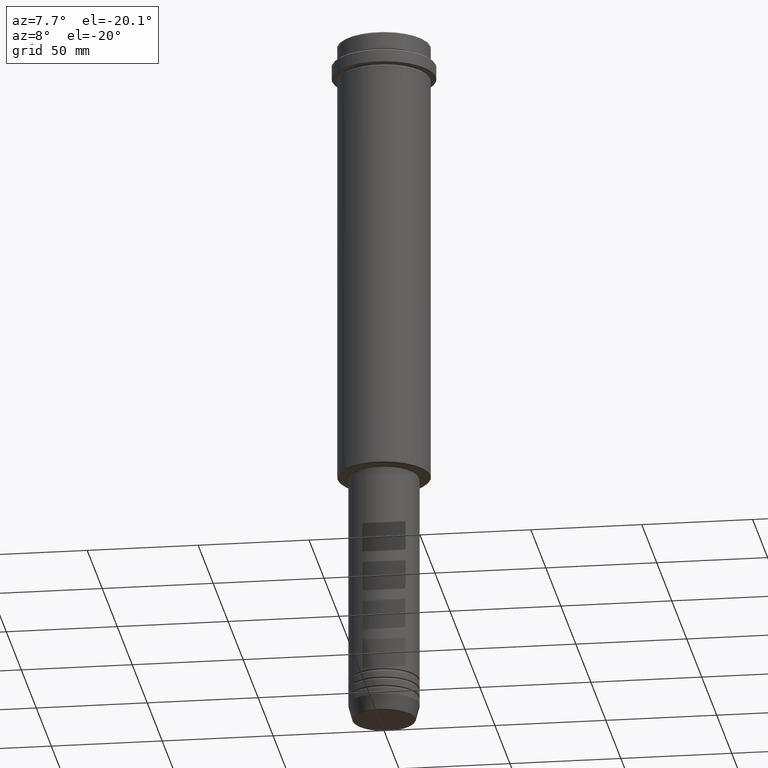
[diagram: clean part render]
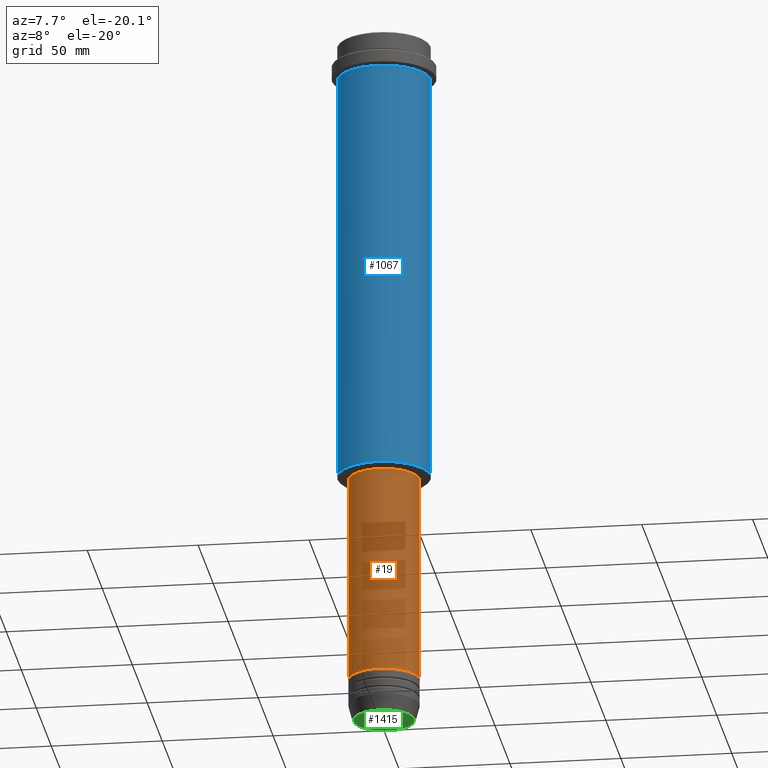
[diagram: same view with three faces highlighted in distinct colors, each labeled with its STEP entity id]
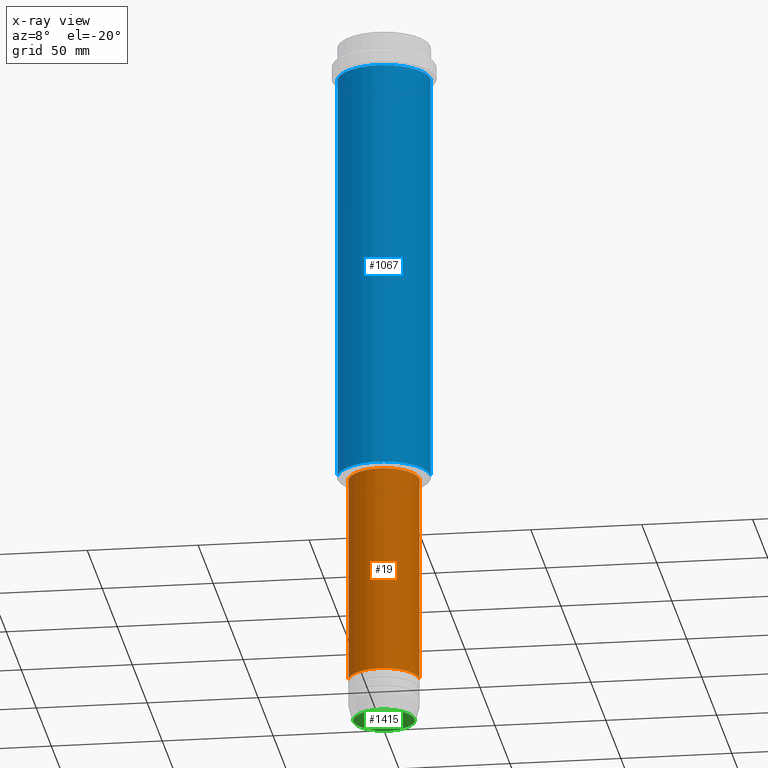
[diagram: x-ray of the same camera — body ghosted, the three highlighted faces saturated]
A machine part, auxiliary view with three faces highlighted in distinct colors.
The next image is the same camera in x-ray (body ghosted, the three faces saturated) — at least one of them is partly hidden behind the body in this view.
Their STEP definitions:

[orange] entity #19 — the highlighted cylindrical surface (edge-blend (fillet) strip) has radius 16 mm, axis along (-0, -0, 1).
#19 = ADVANCED_FACE ( 'NONE', ( #262 ), #151, .T. ) ;
#35 = CIRCLE ( 'NONE', #568, 16.00000000000000000 ) ;
#58 = DIRECTION ( 'NONE',  ( -0.000000000000000000, -0.000000000000000000, 1.000000000000000000 ) ) ;
#69 = DIRECTION ( 'NONE',  ( -0.000000000000000000, -0.000000000000000000, 1.000000000000000000 ) ) ;
#81 = EDGE_CURVE ( 'NONE', #273, #967, #811, .T. ) ;
#151 = CYLINDRICAL_SURFACE ( 'NONE', #705, 16.00000000000000000 ) ;
#262 = FACE_OUTER_BOUND ( 'NONE', #921, .T. ) ;
#273 = VERTEX_POINT ( 'NONE', #417 ) ;
#350 = ORIENTED_EDGE ( 'NONE', *, *, #412, .F. ) ;
#403 = VECTOR ( 'NONE', #1042, 1000.000000000000000 ) ;
#412 = EDGE_CURVE ( 'NONE', #779, #668, #472, .T. ) ;
#413 = CARTESIAN_POINT ( 'NONE',  ( 16.00000000000000355, 0.000000000000000000, -205.9999999999999432 ) ) ;
#417 = CARTESIAN_POINT ( 'NONE',  ( 16.00000000000000000, 0.000000000000000000, -300.9999999999998863 ) ) ;
#465 = DIRECTION ( 'NONE',  ( -0.000000000000000000, -0.000000000000000000, 1.000000000000000000 ) ) ;
#472 = LINE ( 'NONE', #687, #1208 ) ;
#522 = CARTESIAN_POINT ( 'NONE',  ( 16.00000000000000000, 0.000000000000000000, 0.000000000000000000 ) ) ;
#568 = AXIS2_PLACEMENT_3D ( 'NONE', #661, #69, #590 ) ;
#590 = DIRECTION ( 'NONE',  ( 1.000000000000000000, 0.000000000000000000, 0.000000000000000000 ) ) ;
#600 = CARTESIAN_POINT ( 'NONE',  ( 0.000000000000000000, 0.000000000000000000, -205.9999999999999432 ) ) ;
#605 = CARTESIAN_POINT ( 'NONE',  ( -16.00000000000000355, 1.959434878635765526E-15, -205.9999999999999432 ) ) ;
#661 = CARTESIAN_POINT ( 'NONE',  ( 0.000000000000000000, 0.000000000000000000, -300.9999999999998863 ) ) ;
#668 = VERTEX_POINT ( 'NONE', #605 ) ;
#683 = DIRECTION ( 'NONE',  ( 1.000000000000000000, 0.000000000000000000, 0.000000000000000000 ) ) ;
#687 = CARTESIAN_POINT ( 'NONE',  ( -16.00000000000000000, 1.959434878635765131E-15, 0.000000000000000000 ) ) ;
#705 = AXIS2_PLACEMENT_3D ( 'NONE', #1222, #58, #683 ) ;
#779 = VERTEX_POINT ( 'NONE', #1129 ) ;
#783 = CIRCLE ( 'NONE', #844, 16.00000000000000355 ) ;
#809 = DIRECTION ( 'NONE',  ( 1.000000000000000000, 0.000000000000000000, 0.000000000000000000 ) ) ;
#811 = LINE ( 'NONE', #522, #403 ) ;
#826 = DIRECTION ( 'NONE',  ( -0.000000000000000000, -0.000000000000000000, 1.000000000000000000 ) ) ;
#844 = AXIS2_PLACEMENT_3D ( 'NONE', #600, #826, #809 ) ;
#921 = EDGE_LOOP ( 'NONE', ( #350, #1323, #980, #1058 ) ) ;
#967 = VERTEX_POINT ( 'NONE', #413 ) ;
#980 = ORIENTED_EDGE ( 'NONE', *, *, #81, .T. ) ;
#1038 = EDGE_CURVE ( 'NONE', #779, #273, #35, .T. ) ;
#1042 = DIRECTION ( 'NONE',  ( -0.000000000000000000, -0.000000000000000000, 1.000000000000000000 ) ) ;
#1058 = ORIENTED_EDGE ( 'NONE', *, *, #1114, .F. ) ;
#1114 = EDGE_CURVE ( 'NONE', #668, #967, #783, .T. ) ;
#1129 = CARTESIAN_POINT ( 'NONE',  ( -16.00000000000000000, 1.959434878635765131E-15, -300.9999999999998863 ) ) ;
#1208 = VECTOR ( 'NONE', #465, 1000.000000000000000 ) ;
#1222 = CARTESIAN_POINT ( 'NONE',  ( 0.000000000000000000, 0.000000000000000000, 0.000000000000000000 ) ) ;
#1323 = ORIENTED_EDGE ( 'NONE', *, *, #1038, .T. ) ;

[blue] entity #1067 — the highlighted cylindrical surface (partial cylindrical patch) has radius 21 mm, axis along (-0, -0, 1).
#87 = DIRECTION ( 'NONE',  ( -0.000000000000000000, -0.000000000000000000, 1.000000000000000000 ) ) ;
#145 = EDGE_CURVE ( 'NONE', #677, #1304, #609, .T. ) ;
#155 = CYLINDRICAL_SURFACE ( 'NONE', #194, 20.99999999999999645 ) ;
#194 = AXIS2_PLACEMENT_3D ( 'NONE', #927, #723, #603 ) ;
#206 = EDGE_CURVE ( 'NONE', #748, #478, #1071, .T. ) ;
#247 = ORIENTED_EDGE ( 'NONE', *, *, #1261, .F. ) ;
#253 = ORIENTED_EDGE ( 'NONE', *, *, #145, .F. ) ;
#275 = VECTOR ( 'NONE', #501, 1000.000000000000000 ) ;
#371 = FACE_OUTER_BOUND ( 'NONE', #738, .T. ) ;
#382 = CARTESIAN_POINT ( 'NONE',  ( 20.99999999999999645, 0.000000000000000000, -16.00000000000000355 ) ) ;
#386 = EDGE_CURVE ( 'NONE', #677, #748, #780, .T. ) ;
#478 = VERTEX_POINT ( 'NONE', #382 ) ;
#501 = DIRECTION ( 'NONE',  ( -0.000000000000000000, -0.000000000000000000, 1.000000000000000000 ) ) ;
#562 = DIRECTION ( 'NONE',  ( -0.000000000000000000, -0.000000000000000000, 1.000000000000000000 ) ) ;
#603 = DIRECTION ( 'NONE',  ( 1.000000000000000000, 0.000000000000000000, 0.000000000000000000 ) ) ;
#609 = LINE ( 'NONE', #945, #275 ) ;
#628 = ORIENTED_EDGE ( 'NONE', *, *, #386, .T. ) ;
#651 = CARTESIAN_POINT ( 'NONE',  ( -20.99999999999999645, 2.571758278209441267E-15, -204.5000000000000568 ) ) ;
#672 = CARTESIAN_POINT ( 'NONE',  ( 0.000000000000000000, 0.000000000000000000, -16.00000000000000355 ) ) ;
#677 = VERTEX_POINT ( 'NONE', #651 ) ;
#723 = DIRECTION ( 'NONE',  ( -0.000000000000000000, -0.000000000000000000, 1.000000000000000000 ) ) ;
#738 = EDGE_LOOP ( 'NONE', ( #253, #628, #1138, #247 ) ) ;
#748 = VERTEX_POINT ( 'NONE', #1194 ) ;
#780 = CIRCLE ( 'NONE', #982, 20.99999999999999645 ) ;
#855 = DIRECTION ( 'NONE',  ( 1.000000000000000000, 0.000000000000000000, 0.000000000000000000 ) ) ;
#927 = CARTESIAN_POINT ( 'NONE',  ( 0.000000000000000000, 0.000000000000000000, 0.000000000000000000 ) ) ;
#945 = CARTESIAN_POINT ( 'NONE',  ( -20.99999999999999645, 2.571758278209441267E-15, 0.000000000000000000 ) ) ;
#982 = AXIS2_PLACEMENT_3D ( 'NONE', #1250, #562, #1112 ) ;
#1029 = VECTOR ( 'NONE', #87, 1000.000000000000000 ) ;
#1036 = AXIS2_PLACEMENT_3D ( 'NONE', #672, #1096, #855 ) ;
#1064 = CARTESIAN_POINT ( 'NONE',  ( 20.99999999999999645, 0.000000000000000000, 0.000000000000000000 ) ) ;
#1067 = ADVANCED_FACE ( 'NONE', ( #371 ), #155, .T. ) ;
#1071 = LINE ( 'NONE', #1064, #1029 ) ;
#1096 = DIRECTION ( 'NONE',  ( -0.000000000000000000, -0.000000000000000000, 1.000000000000000000 ) ) ;
#1112 = DIRECTION ( 'NONE',  ( -1.000000000000000000, 0.000000000000000000, 0.000000000000000000 ) ) ;
#1138 = ORIENTED_EDGE ( 'NONE', *, *, #206, .T. ) ;
#1194 = CARTESIAN_POINT ( 'NONE',  ( 20.99999999999999645, 0.000000000000000000, -204.5000000000000568 ) ) ;
#1250 = CARTESIAN_POINT ( 'NONE',  ( 0.000000000000000000, 0.000000000000000000, -204.5000000000000568 ) ) ;
#1261 = EDGE_CURVE ( 'NONE', #1304, #478, #1289, .T. ) ;
#1289 = CIRCLE ( 'NONE', #1036, 20.99999999999999645 ) ;
#1304 = VERTEX_POINT ( 'NONE', #1411 ) ;
#1411 = CARTESIAN_POINT ( 'NONE',  ( -20.99999999999999645, 2.571758278209441267E-15, -16.00000000000000355 ) ) ;

[green] entity #1415 — the highlighted planar face has unit normal (0, -0, 1).
#25 = EDGE_LOOP ( 'NONE', ( #708, #1242 ) ) ;
#29 = DIRECTION ( 'NONE',  ( 1.000000000000000000, 0.000000000000000000, 0.000000000000000000 ) ) ;
#268 = EDGE_CURVE ( 'NONE', #533, #1209, #777, .T. ) ;
#355 = EDGE_CURVE ( 'NONE', #1209, #533, #1030, .T. ) ;
#408 = AXIS2_PLACEMENT_3D ( 'NONE', #778, #655, #761 ) ;
#442 = DIRECTION ( 'NONE',  ( 1.000000000000000000, 0.000000000000000000, 0.000000000000000000 ) ) ;
#448 = CARTESIAN_POINT ( 'NONE',  ( 0.000000000000000000, 0.000000000000000000, -320.0000000000000000 ) ) ;
#533 = VERTEX_POINT ( 'NONE', #1031 ) ;
#591 = FACE_OUTER_BOUND ( 'NONE', #25, .T. ) ;
#637 = AXIS2_PLACEMENT_3D ( 'NONE', #1413, #1204, #442 ) ;
#655 = DIRECTION ( 'NONE',  ( 0.000000000000000000, 0.000000000000000000, -1.000000000000000000 ) ) ;
#708 = ORIENTED_EDGE ( 'NONE', *, *, #268, .T. ) ;
#727 = CARTESIAN_POINT ( 'NONE',  ( -13.74069215899265828, 1.712322416342415986E-15, -320.0000000000000000 ) ) ;
#761 = DIRECTION ( 'NONE',  ( 1.000000000000000000, 0.000000000000000000, 0.000000000000000000 ) ) ;
#777 = CIRCLE ( 'NONE', #637, 13.74069215899265828 ) ;
#778 = CARTESIAN_POINT ( 'NONE',  ( 0.000000000000000000, 0.000000000000000000, -320.0000000000000000 ) ) ;
#907 = PLANE ( 'NONE',  #1191 ) ;
#1030 = CIRCLE ( 'NONE', #408, 13.74069215899265828 ) ;
#1031 = CARTESIAN_POINT ( 'NONE',  ( 13.74069215899265828, 0.000000000000000000, -320.0000000000000000 ) ) ;
#1191 = AXIS2_PLACEMENT_3D ( 'NONE', #448, #1347, #29 ) ;
#1204 = DIRECTION ( 'NONE',  ( 0.000000000000000000, 0.000000000000000000, -1.000000000000000000 ) ) ;
#1209 = VERTEX_POINT ( 'NONE', #727 ) ;
#1242 = ORIENTED_EDGE ( 'NONE', *, *, #355, .T. ) ;
#1347 = DIRECTION ( 'NONE',  ( 0.000000000000000000, -0.000000000000000000, 1.000000000000000000 ) ) ;
#1413 = CARTESIAN_POINT ( 'NONE',  ( 0.000000000000000000, 0.000000000000000000, -320.0000000000000000 ) ) ;
#1415 = ADVANCED_FACE ( 'NONE', ( #591 ), #907, .F. ) ;